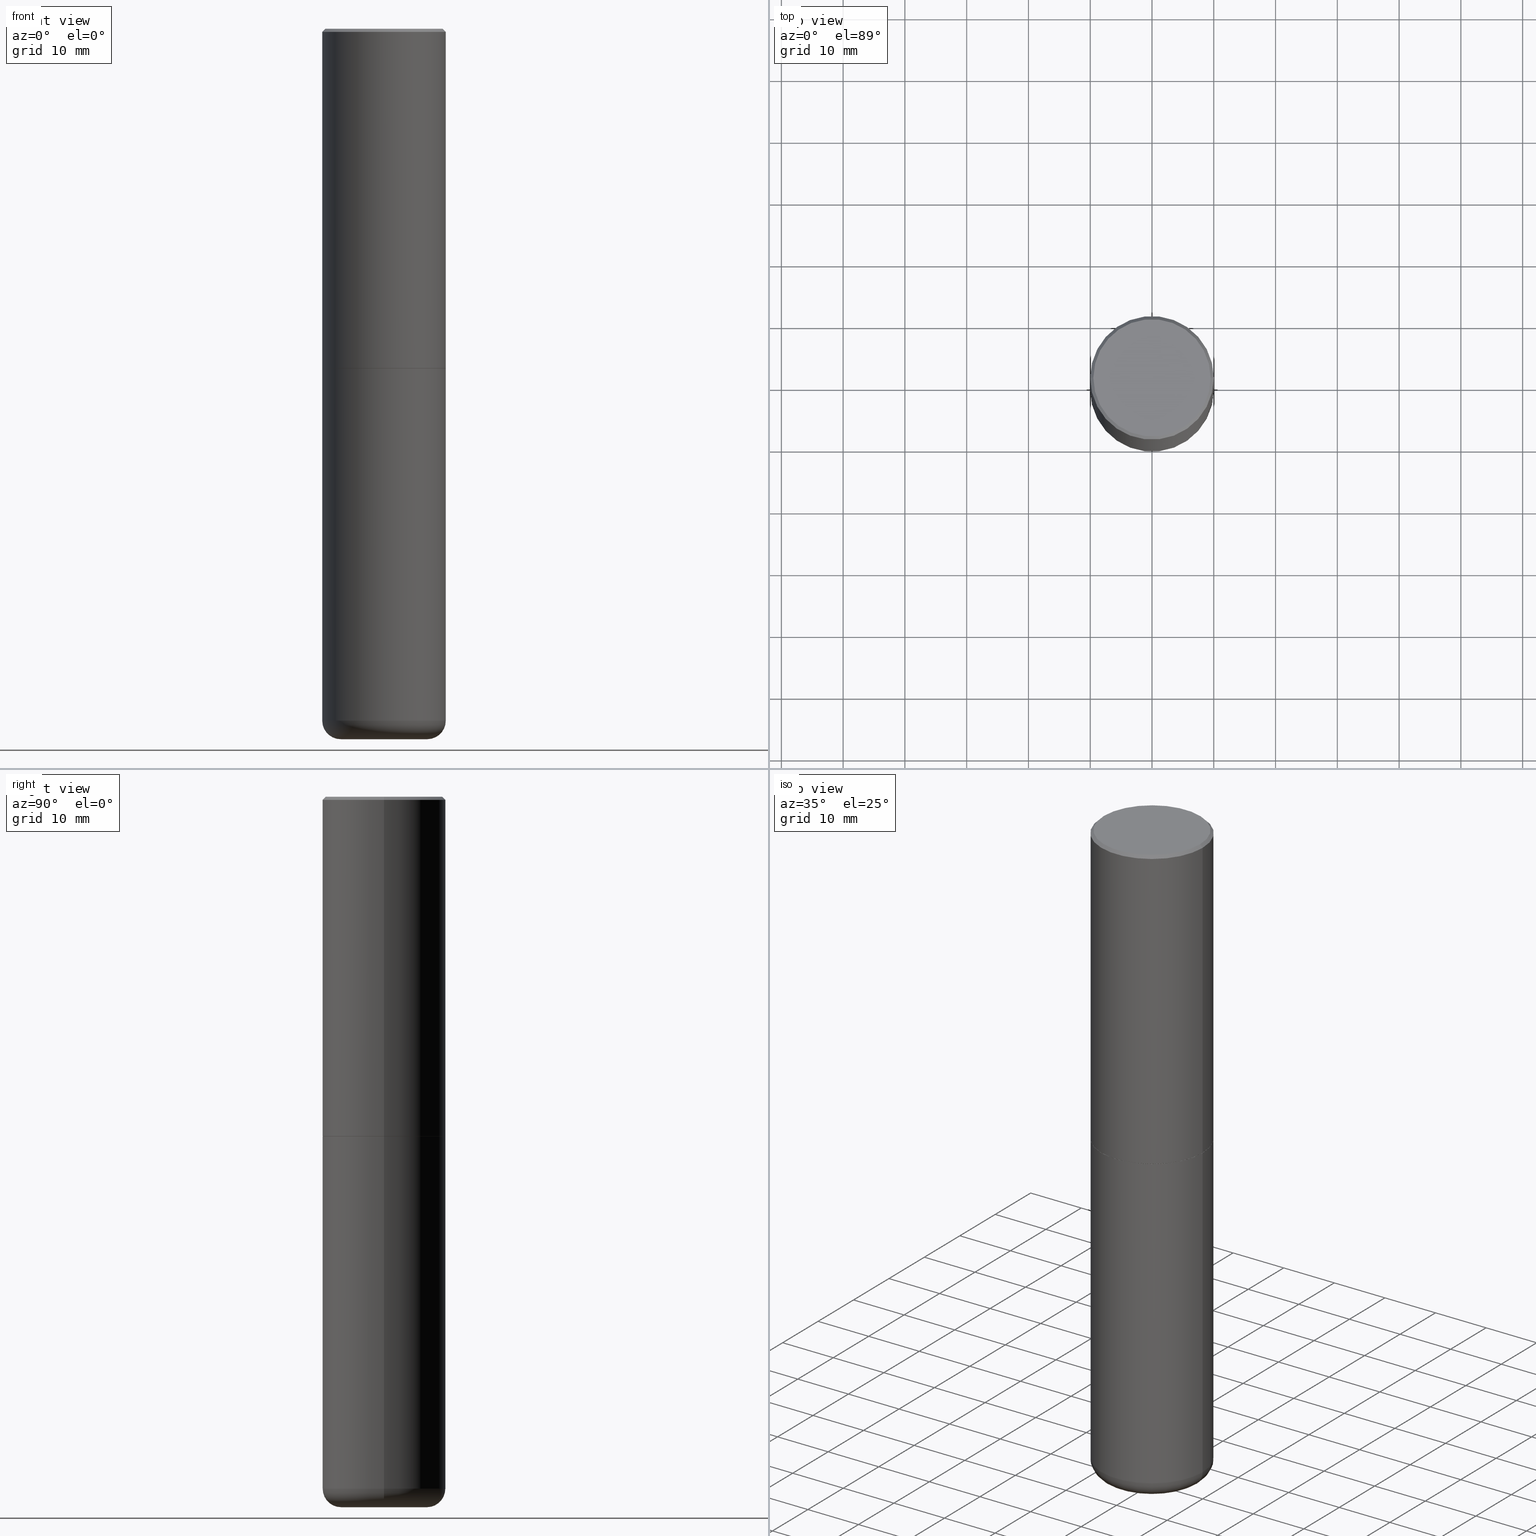
[diagram: canonical four-view strip — front | top / right | iso, engineering-drawing reading convention]
A machine part, canonical four-view strip (front | top / right | iso — engineering-drawing reading convention). The complete STEP part file that produces these views, byte-faithful:
ISO-10303-21;
HEADER;
FILE_DESCRIPTION (( 'STEP AP203' ),
    '1' );
FILE_NAME ('74834.STEP',
    '2024-05-02T19:22:22',
    ( '' ),
    ( '' ),
    'SwSTEP 2.0',
    'SolidWorks 2023',
    '' );
FILE_SCHEMA (( 'CONFIG_CONTROL_DESIGN' ));
ENDSEC;

DATA;
#1 = DIRECTION ( 'NONE',  ( -2.445468806185136597E-29, 3.491481338843145583E-15, 1.000000000000000000 ) ) ;
#2 = ADVANCED_FACE ( 'NONE', ( #394 ), #97, .F. ) ;
#3 = ORIENTED_EDGE ( 'NONE', *, *, #361, .T. ) ;
#4 = MECHANICAL_CONTEXT ( 'NONE', #238, 'mechanical' ) ;
#5 = VERTEX_POINT ( 'NONE', #38 ) ;
#6 = EDGE_CURVE ( 'NONE', #299, #298, #411, .T. ) ;
#7 = DIRECTION ( 'NONE',  ( 1.000000000000000000, -6.982962677686269077E-15, 0.000000000000000000 ) ) ;
#8 = ORIENTED_EDGE ( 'NONE', *, *, #361, .F. ) ;
#9 = CARTESIAN_POINT ( 'NONE',  ( -0.2756000000000000116, -1.343743118387401317E-14, -4.409499999999999531 ) ) ;
#10 = EDGE_CURVE ( 'NONE', #87, #91, #324, .T. ) ;
#11 = EDGE_LOOP ( 'NONE', ( #85, #194, #8, #231 ) ) ;
#12 = CLOSED_SHELL ( 'NONE', ( #237, #196, #373, #229, #337, #76, #302, #2 ) ) ;
#13 = CARTESIAN_POINT ( 'NONE',  ( 0.3736999999999999211, -2.667287895133367964E-15, 2.262311619753402158E-16 ) ) ;
#14 =( NAMED_UNIT ( * ) PLANE_ANGLE_UNIT ( ) SI_UNIT ( $, .RADIAN. ) );
#15 = CARTESIAN_POINT ( 'NONE',  ( 5.295418152913293224E-29, -7.560453691130945845E-15, -2.165399999999999547 ) ) ;
#16 = CALENDAR_DATE ( 2024, 2, 5 ) ;
#17 = CC_DESIGN_PERSON_AND_ORGANIZATION_ASSIGNMENT ( #182, #214, ( #225 ) ) ;
#18 = DIRECTION ( 'NONE',  ( -2.445468806185136877E-29, 3.491481338843145188E-15, 1.000000000000000000 ) ) ;
#19 = DIRECTION ( 'NONE',  ( -2.445468806185136597E-29, 3.491481338843145583E-15, 1.000000000000000000 ) ) ;
#20 = CONICAL_SURFACE ( 'NONE', #239, 0.3937000000000001054, 0.7853981633974453924 ) ;
#21 = FACE_OUTER_BOUND ( 'NONE', #300, .T. ) ;
#22 = DIRECTION ( 'NONE',  ( -2.445468806185136597E-29, 3.491481338843145583E-15, 1.000000000000000000 ) ) ;
#23 = CARTESIAN_POINT ( 'NONE',  ( 1.107210456688382074E-28, -1.580803090974622074E-14, -4.527599999999998737 ) ) ;
#24 = CONICAL_SURFACE ( 'NONE', #42, 0.3937000000000001054, 0.7853981633974453924 ) ;
#25 = APPROVAL_PERSON_ORGANIZATION ( #339, #142, #89 ) ;
#26 = CARTESIAN_POINT ( 'NONE',  ( 4.890937612370294178E-31, -6.982962677686321191E-17, -0.02000000000000008715 ) ) ;
#27 = ORIENTED_EDGE ( 'NONE', *, *, #179, .F. ) ;
#28 = ORIENTED_EDGE ( 'NONE', *, *, #385, .F. ) ;
#29 = DIRECTION ( 'NONE',  ( 1.000000000000000000, -6.982962677686265922E-15, 0.000000000000000000 ) ) ;
#30 = CALENDAR_DATE ( 2024, 2, 5 ) ;
#31 = CIRCLE ( 'NONE', #278, 0.3937000000000001054 ) ;
#32 = ORIENTED_EDGE ( 'NONE', *, *, #269, .F. ) ;
#33 = PERSON_AND_ORGANIZATION ( #166, #165 ) ;
#34 = EDGE_LOOP ( 'NONE', ( #384, #201, #129, #267 ) ) ;
#35 = TOROIDAL_SURFACE ( 'NONE', #371, 0.2756000000000000116, 0.1180999999999997052 ) ;
#36 = ORIENTED_EDGE ( 'NONE', *, *, #376, .F. ) ;
#37 = DIRECTION ( 'NONE',  ( -0.7071067811865454633, 2.468850131082235367E-15, -0.7071067811865495711 ) ) ;
#38 = CARTESIAN_POINT ( 'NONE',  ( 0.3937000000000002720, -1.030615461599718763E-14, -2.164399999999999658 ) ) ;
#39 = DIRECTION ( 'NONE',  ( 1.000000000000000000, -6.982962677686266711E-15, 0.000000000000000000 ) ) ;
#40 = ADVANCED_FACE ( 'NONE', ( #104 ), #338, .F. ) ;
#41 = VECTOR ( 'NONE', #164, 39.37007874015748143 ) ;
#42 = AXIS2_PLACEMENT_3D ( 'NONE', #26, #151, #289 ) ;
#43 = DIRECTION ( 'NONE',  ( -2.445468806185136597E-29, 3.491481338843145583E-15, 1.000000000000000000 ) ) ;
#44 = DIRECTION ( 'NONE',  ( 1.000000000000000000, -6.982962677686265133E-15, 0.000000000000000000 ) ) ;
#45 = DIRECTION ( 'NONE',  ( -2.445468806185136597E-29, 3.491481338843145583E-15, 1.000000000000000000 ) ) ;
#46 = EDGE_CURVE ( 'NONE', #5, #91, #74, .T. ) ;
#47 = DIRECTION ( 'NONE',  ( -2.445468806185136597E-29, 3.491481338843145583E-15, 1.000000000000000000 ) ) ;
#48 = CIRCLE ( 'NONE', #412, 0.3736999999999999211 ) ;
#49 = DIRECTION ( 'NONE',  ( 1.000000000000000000, -6.982962677686265922E-15, 4.876176775795935793E-29 ) ) ;
#50 = CARTESIAN_POINT ( 'NONE',  ( 0.3926999999999999935, -1.030266313465834305E-14, -2.165399999999999547 ) ) ;
#51 = CARTESIAN_POINT ( 'NONE',  ( 2.609533152651356620E-15, 0.3736999999999999211, -1.191650995338022328E-15 ) ) ;
#52 = PLANE ( 'NONE',  #86 ) ;
#53 = VECTOR ( 'NONE', #37, 39.37007874015748143 ) ;
#54 = DIRECTION ( 'NONE',  ( 1.000000000000000000, -6.982962677686266711E-15, 4.876176775795935793E-29 ) ) ;
#55 = VERTEX_POINT ( 'NONE', #215 ) ;
#56 = DATE_AND_TIME ( #397, #295 ) ;
#57 = ORIENTED_EDGE ( 'NONE', *, *, #63, .F. ) ;
#58 = ORIENTED_EDGE ( 'NONE', *, *, #304, .T. ) ;
#59 = CIRCLE ( 'NONE', #247, 0.3936999999999999389 ) ;
#60 = EDGE_LOOP ( 'NONE', ( #258, #236, #326, #119 ) ) ;
#61 = EDGE_LOOP ( 'NONE', ( #28, #132 ) ) ;
#62 = ORIENTED_EDGE ( 'NONE', *, *, #46, .F. ) ;
#63 = EDGE_CURVE ( 'NONE', #298, #152, #59, .T. ) ;
#64 = ORIENTED_EDGE ( 'NONE', *, *, #315, .T. ) ;
#65 = TOROIDAL_SURFACE ( 'NONE', #309, 0.2756000000000000116, 0.1180999999999997052 ) ;
#66 = DIRECTION ( 'NONE',  ( 0.7071067811866199593, -2.468850131083015945E-15, 0.7071067811864750752 ) ) ;
#67 = CARTESIAN_POINT ( 'NONE',  ( 5.295418152913293224E-29, -7.560453691130945845E-15, -2.165399999999999547 ) ) ;
#68 = EDGE_CURVE ( 'NONE', #191, #91, #113, .T. ) ;
#69 = DIRECTION ( 'NONE',  ( 1.000000000000000000, -6.982962677686266711E-15, 4.876176775795935793E-29 ) ) ;
#70 = PERSON_AND_ORGANIZATION ( #166, #165 ) ;
#71 = DIRECTION ( 'NONE',  ( 1.000000000000000000, -6.982962677686268288E-15, 0.000000000000000000 ) ) ;
#72 = COORDINATED_UNIVERSAL_TIME_OFFSET ( 5, 0, .BEHIND. ) ;
#73 = CIRCLE ( 'NONE', #172, 0.2756000000000000116 ) ;
#74 = LINE ( 'NONE', #136, #148 ) ;
#75 = CARTESIAN_POINT ( 'NONE',  ( 0.3937000000000001054, -2.770807688499516128E-15, -0.02000000000000008715 ) ) ;
#76 = ADVANCED_FACE ( 'NONE', ( #143 ), #99, .T. ) ;
#77 = CARTESIAN_POINT ( 'NONE',  ( 1.107210456688382074E-28, -1.580803090974622074E-14, -4.527599999999998737 ) ) ;
#78 = CC_DESIGN_PERSON_AND_ORGANIZATION_ASSIGNMENT ( #365, #274, ( #418 ) ) ;
#79 = FACE_OUTER_BOUND ( 'NONE', #61, .T. ) ;
#80 = AXIS2_PLACEMENT_3D ( 'NONE', #242, #101, #71 ) ;
#81 = CARTESIAN_POINT ( 'NONE',  ( 5.295418152913293224E-29, -7.560453691130945845E-15, -2.165399999999999547 ) ) ;
#82 = CARTESIAN_POINT ( 'NONE',  ( 4.890937612370294178E-31, -6.982962677686321191E-17, -0.02000000000000008715 ) ) ;
#83 = ORIENTED_EDGE ( 'NONE', *, *, #356, .T. ) ;
#84 = CARTESIAN_POINT ( 'NONE',  ( 5.292972684107107621E-29, -7.556962209792102838E-15, -2.164399999999999658 ) ) ;
#85 = ORIENTED_EDGE ( 'NONE', *, *, #63, .T. ) ;
#86 = AXIS2_PLACEMENT_3D ( 'NONE', #417, #219, #49 ) ;
#87 = VERTEX_POINT ( 'NONE', #13 ) ;
#88 = ORIENTED_EDGE ( 'NONE', *, *, #131, .F. ) ;
#89 = APPROVAL_ROLE ( '' ) ;
#90 = PERSON_AND_ORGANIZATION ( #166, #165 ) ;
#91 = VERTEX_POINT ( 'NONE', #75 ) ;
#92 = CIRCLE ( 'NONE', #341, 0.1180999999999997191 ) ;
#93 = EDGE_LOOP ( 'NONE', ( #127, #268 ) ) ;
#94 = CC_DESIGN_APPROVAL ( #401, ( #225 ) ) ;
#95 = EDGE_CURVE ( 'NONE', #388, #191, #135, .T. ) ;
#96 = DIRECTION ( 'NONE',  ( -6.982962677686266711E-15, -1.000000000000000000, 3.491481338843145583E-15 ) ) ;
#97 = PLANE ( 'NONE',  #171 ) ;
#98 = EDGE_CURVE ( 'NONE', #362, #328, #168, .T. ) ;
#99 = CONICAL_SURFACE ( 'NONE', #80, 0.3926999999999999935, 0.7853981633975507526 ) ;
#100 = SECURITY_CLASSIFICATION ( '', '', #279 ) ;
#101 = DIRECTION ( 'NONE',  ( -2.445468806185136597E-29, 3.491481338843145583E-15, 1.000000000000000000 ) ) ;
#102 = CARTESIAN_POINT ( 'NONE',  ( 0.000000000000000000, 0.000000000000000000, 0.000000000000000000 ) ) ;
#103 = CC_DESIGN_PERSON_AND_ORGANIZATION_ASSIGNMENT ( #33, #160, ( #347 ) ) ;
#104 = FACE_OUTER_BOUND ( 'NONE', #163, .T. ) ;
#105 = CARTESIAN_POINT ( 'NONE',  ( 0.3926999999999999935, -1.030266313465834305E-14, -2.165399999999999547 ) ) ;
#106 = CIRCLE ( 'NONE', #259, 0.3937000000000002720 ) ;
#107 = FACE_OUTER_BOUND ( 'NONE', #161, .T. ) ;
#108 = CARTESIAN_POINT ( 'NONE',  ( -5.532412495976664402E-45, 7.898818803016371119E-31, 2.262311619753217762E-16 ) ) ;
#109 = EDGE_CURVE ( 'NONE', #55, #152, #92, .T. ) ;
#110 = DIRECTION ( 'NONE',  ( 2.445468806185136597E-29, -3.491481338843145583E-15, -1.000000000000000000 ) ) ;
#111 = EDGE_CURVE ( 'NONE', #328, #191, #280, .T. ) ;
#112 = CLOSED_SHELL ( 'NONE', ( #138, #153, #40, #266, #389, #240 ) ) ;
#113 = CIRCLE ( 'NONE', #308, 0.3937000000000001054 ) ;
#114 = CARTESIAN_POINT ( 'NONE',  ( 5.295418152913293224E-29, -7.560453691130945845E-15, -2.165399999999999547 ) ) ;
#115 = CC_DESIGN_APPROVAL ( #261, ( #100 ) ) ;
#116 = DIRECTION ( 'NONE',  ( -1.000000000000000000, 6.982962677686265922E-15, -4.876176775795935793E-29 ) ) ;
#117 = DIRECTION ( 'NONE',  ( -2.445468806185136597E-29, 3.491481338843145583E-15, 1.000000000000000000 ) ) ;
#118 = ORIENTED_EDGE ( 'NONE', *, *, #109, .F. ) ;
#119 = ORIENTED_EDGE ( 'NONE', *, *, #68, .T. ) ;
#120 = MANIFOLD_SOLID_BREP ( 'Body-Move/Copy2[2]', #12 ) ;
#121 = DIRECTION ( 'NONE',  ( -2.445468806185136597E-29, 3.491481338843145583E-15, 1.000000000000000000 ) ) ;
#122 = ORIENTED_EDGE ( 'NONE', *, *, #111, .T. ) ;
#123 = CONICAL_SURFACE ( 'NONE', #223, 0.3926999999999999935, 0.7853981633975507526 ) ;
#124 = LENGTH_MEASURE_WITH_UNIT ( LENGTH_MEASURE( 0.02539999999999999897 ), #169 );
#125 = CALENDAR_DATE ( 2024, 2, 5 ) ;
#126 = DIRECTION ( 'NONE',  ( -2.445468806185136597E-29, 3.491481338843145583E-15, 1.000000000000000000 ) ) ;
#127 = ORIENTED_EDGE ( 'NONE', *, *, #318, .T. ) ;
#128 = AXIS2_PLACEMENT_3D ( 'NONE', #67, #126, #310 ) ;
#129 = ORIENTED_EDGE ( 'NONE', *, *, #46, .T. ) ;
#130 = LINE ( 'NONE', #275, #141 ) ;
#131 = EDGE_CURVE ( 'NONE', #152, #272, #130, .T. ) ;
#132 = ORIENTED_EDGE ( 'NONE', *, *, #156, .F. ) ;
#133 = COORDINATED_UNIVERSAL_TIME_OFFSET ( 5, 0, .BEHIND. ) ;
#134 = CIRCLE ( 'NONE', #404, 0.3937000000000000499 ) ;
#135 = LINE ( 'NONE', #303, #53 ) ;
#136 = CARTESIAN_POINT ( 'NONE',  ( 0.3937000000000002164, -2.749192406205084794E-15, 1.919750796630861012E-29 ) ) ;
#137 = EDGE_LOOP ( 'NONE', ( #27, #291, #305, #193 ) ) ;
#138 = ADVANCED_FACE ( 'NONE', ( #398 ), #343, .T. ) ;
#139 = CARTESIAN_POINT ( 'NONE',  ( 0.000000000000000000, 0.000000000000000000, 0.000000000000000000 ) ) ;
#140 = APPROVAL_STATUS ( 'not_yet_approved' ) ;
#141 = VECTOR ( 'NONE', #18, 39.37007874015748143 ) ;
#142 = APPROVAL ( #297, 'UNSPECIFIED' ) ;
#143 = FACE_OUTER_BOUND ( 'NONE', #222, .T. ) ;
#144 = DIRECTION ( 'NONE',  ( -2.445468806185136597E-29, 3.491481338843145583E-15, 1.000000000000000000 ) ) ;
#145 = EDGE_CURVE ( 'NONE', #333, #5, #244, .T. ) ;
#146 = EDGE_LOOP ( 'NONE', ( #118, #64, #391, #352 ) ) ;
#147 = DIRECTION ( 'NONE',  ( -2.445468806185136597E-29, 3.491481338843145583E-15, 1.000000000000000000 ) ) ;
#148 = VECTOR ( 'NONE', #307, 39.37007874015748143 ) ;
#149 = LINE ( 'NONE', #286, #322 ) ;
#150 = CARTESIAN_POINT ( 'NONE',  ( 0.3937000000000001054, -2.770807688499516128E-15, -0.02000000000000008715 ) ) ;
#151 = DIRECTION ( 'NONE',  ( 2.445468806185136597E-29, -3.491481338843145583E-15, -1.000000000000000000 ) ) ;
#152 = VERTEX_POINT ( 'NONE', #205 ) ;
#153 = ADVANCED_FACE ( 'NONE', ( #209 ), #65, .T. ) ;
#154 = DIRECTION ( 'NONE',  ( -1.000000000000000000, 6.982962677686266711E-15, 0.000000000000000000 ) ) ;
#155 = APPROVAL_DATE_TIME ( #327, #401 ) ;
#156 = EDGE_CURVE ( 'NONE', #362, #333, #392, .T. ) ;
#157 = APPROVAL_PERSON_ORGANIZATION ( #216, #261, #253 ) ;
#158 = APPLICATION_PROTOCOL_DEFINITION ( 'international standard', 'config_control_design', 1994, #380 ) ;
#159 = ORIENTED_EDGE ( 'NONE', *, *, #273, .F. ) ;
#160 = PERSON_AND_ORGANIZATION_ROLE ( 'design_owner' ) ;
#161 = EDGE_LOOP ( 'NONE', ( #185, #122, #228, #62 ) ) ;
#162 = CIRCLE ( 'NONE', #128, 0.3926999999999999935 ) ;
#163 = EDGE_LOOP ( 'NONE', ( #3, #58 ) ) ;
#164 = DIRECTION ( 'NONE',  ( 0.7071067811865454633, -7.319954787623248157E-15, -0.7071067811865495711 ) ) ;
#165 = ORGANIZATION ( 'UNSPECIFIED', 'UNSPECIFIED', '' ) ;
#166 = PERSON ( 'UNSPECIFIED', 'UNSPECIFIED', 'UNSPECIFIED', ('UNSPECIFIED'), ('UNSPECIFIED'), ('UNSPECIFIED') ) ;
#167 = ORIENTED_EDGE ( 'NONE', *, *, #304, .F. ) ;
#168 = LINE ( 'NONE', #170, #317 ) ;
#169 =( LENGTH_UNIT ( ) NAMED_UNIT ( * ) SI_UNIT ( $, .METRE. ) );
#170 = CARTESIAN_POINT ( 'NONE',  ( -0.3926999999999999935, -4.770152367801032067E-15, -2.165399999999999547 ) ) ;
#171 = AXIS2_PLACEMENT_3D ( 'NONE', #51, #197, #212 ) ;
#172 = AXIS2_PLACEMENT_3D ( 'NONE', #23, #355, #29 ) ;
#173 = DATE_TIME_ROLE ( 'creation_date' ) ;
#174 = CARTESIAN_POINT ( 'NONE',  ( 1.078329470087335798E-28, -1.539568696362884818E-14, -4.409499999999999531 ) ) ;
#175 = DATE_TIME_ROLE ( 'classification_date' ) ;
#176 = DIRECTION ( 'NONE',  ( -0.7071067811866199593, 7.493145998870616062E-15, 0.7071067811864750752 ) ) ;
#177 = CARTESIAN_POINT ( 'NONE',  ( -0.3937000000000001054, 2.679362779428220707E-15, -0.02000000000000008715 ) ) ;
#178 = AXIS2_PLACEMENT_3D ( 'NONE', #77, #217, #255 ) ;
#179 = EDGE_CURVE ( 'NONE', #87, #388, #218, .T. ) ;
#180 = CC_DESIGN_SECURITY_CLASSIFICATION ( #100, ( #225 ) ) ;
#181 = DIRECTION ( 'NONE',  ( 1.000000000000000000, -6.982962677686269077E-15, 0.000000000000000000 ) ) ;
#182 = PERSON_AND_ORGANIZATION ( #166, #165 ) ;
#183 = DIRECTION ( 'NONE',  ( 1.000000000000000000, -6.982962677686273021E-15, 0.000000000000000000 ) ) ;
#184 = CARTESIAN_POINT ( 'NONE',  ( -5.532412495976664402E-45, 7.898818803016371119E-31, 2.262311619753217762E-16 ) ) ;
#185 = ORIENTED_EDGE ( 'NONE', *, *, #376, .T. ) ;
#186 = DIRECTION ( 'NONE',  ( 1.000000000000000000, -6.982962677686265133E-15, 0.000000000000000000 ) ) ;
#187 = AXIS2_PLACEMENT_3D ( 'NONE', #114, #147, #186 ) ;
#188 = CARTESIAN_POINT ( 'NONE',  ( -0.3937000000000002720, -1.015989167596965718E-15, -2.164399999999999658 ) ) ;
#189 = EDGE_CURVE ( 'NONE', #152, #298, #271, .T. ) ;
#190 = CARTESIAN_POINT ( 'NONE',  ( 5.295418152913293224E-29, -7.560453691130945845E-15, -2.165399999999999547 ) ) ;
#191 = VERTEX_POINT ( 'NONE', #177 ) ;
#192 = DIRECTION ( 'NONE',  ( 0.000000000000000000, 0.000000000000000000, 1.000000000000000000 ) ) ;
#193 = ORIENTED_EDGE ( 'NONE', *, *, #95, .F. ) ;
#194 = ORIENTED_EDGE ( 'NONE', *, *, #131, .T. ) ;
#195 = APPROVAL_DATE_TIME ( #230, #142 ) ;
#196 = ADVANCED_FACE ( 'NONE', ( #107 ), #250, .T. ) ;
#197 = DIRECTION ( 'NONE',  ( 2.438088387897960049E-29, -3.491481338843145188E-15, -1.000000000000000000 ) ) ;
#198 = ORIENTED_EDGE ( 'NONE', *, *, #145, .T. ) ;
#199 = CARTESIAN_POINT ( 'NONE',  ( 5.292972684107107621E-29, -7.556962209792102838E-15, -2.164399999999999658 ) ) ;
#200 = ORIENTED_EDGE ( 'NONE', *, *, #385, .T. ) ;
#201 = ORIENTED_EDGE ( 'NONE', *, *, #269, .T. ) ;
#202 = DESIGN_CONTEXT ( 'detailed design', #380, 'design' ) ;
#203 = ORIENTED_EDGE ( 'NONE', *, *, #98, .F. ) ;
#204 = AXIS2_PLACEMENT_3D ( 'NONE', #108, #312, #396 ) ;
#205 = CARTESIAN_POINT ( 'NONE',  ( -0.3936999999999998279, -1.259828021294133576E-14, -4.409499999999999531 ) ) ;
#206 = CARTESIAN_POINT ( 'NONE',  ( -0.3736999999999999211, 2.644447966039789453E-15, 2.262311619753034352E-16 ) ) ;
#207 = DIRECTION ( 'NONE',  ( 1.000000000000000000, -6.982962677686268288E-15, 0.000000000000000000 ) ) ;
#208 = ORIENTED_EDGE ( 'NONE', *, *, #145, .F. ) ;
#209 = FACE_OUTER_BOUND ( 'NONE', #382, .T. ) ;
#210 = CIRCLE ( 'NONE', #294, 0.3937000000000002720 ) ;
#211 = DATE_AND_TIME ( #375, #342 ) ;
#212 = DIRECTION ( 'NONE',  ( -1.000000000000000000, 6.982962677686265922E-15, -4.876176775795935793E-29 ) ) ;
#213 = DIRECTION ( 'NONE',  ( -1.000000000000000000, 6.982962677686265922E-15, -4.876176775795935793E-29 ) ) ;
#214 = PERSON_AND_ORGANIZATION_ROLE ( 'design_supplier' ) ;
#215 = CARTESIAN_POINT ( 'NONE',  ( -0.2756000000000000116, -1.322402767146636311E-14, -4.527599999999998737 ) ) ;
#216 = PERSON_AND_ORGANIZATION ( #166, #165 ) ;
#217 = DIRECTION ( 'NONE',  ( -2.445468806185136597E-29, 3.491481338843145583E-15, 1.000000000000000000 ) ) ;
#218 = CIRCLE ( 'NONE', #204, 0.3736999999999999211 ) ;
#219 = DIRECTION ( 'NONE',  ( -2.438088387897960049E-29, 3.491481338843145188E-15, 1.000000000000000000 ) ) ;
#220 = DIRECTION ( 'NONE',  ( 2.438088387897960049E-29, -3.491481338843145188E-15, -1.000000000000000000 ) ) ;
#221 = FACE_OUTER_BOUND ( 'NONE', #137, .T. ) ;
#222 = EDGE_LOOP ( 'NONE', ( #203, #387, #198, #32 ) ) ;
#223 = AXIS2_PLACEMENT_3D ( 'NONE', #190, #117, #281 ) ;
#224 = FACE_OUTER_BOUND ( 'NONE', #60, .T. ) ;
#225 = PRODUCT_DEFINITION_FORMATION_WITH_SPECIFIED_SOURCE ( 'ANY', '', #347, .NOT_KNOWN. ) ;
#226 = CC_DESIGN_DATE_AND_TIME_ASSIGNMENT ( #56, #173, ( #418 ) ) ;
#227 = COORDINATED_UNIVERSAL_TIME_OFFSET ( 5, 0, .BEHIND. ) ;
#228 = ORIENTED_EDGE ( 'NONE', *, *, #232, .F. ) ;
#229 = ADVANCED_FACE ( 'NONE', ( #224 ), #20, .T. ) ;
#230 = DATE_AND_TIME ( #125, #405 ) ;
#231 = ORIENTED_EDGE ( 'NONE', *, *, #356, .F. ) ;
#232 = EDGE_CURVE ( 'NONE', #91, #191, #31, .T. ) ;
#233 =( NAMED_UNIT ( * ) SI_UNIT ( $, .STERADIAN. ) SOLID_ANGLE_UNIT ( ) );
#234 = AXIS2_PLACEMENT_3D ( 'NONE', #283, #96, #183 ) ;
#235 = AXIS2_PLACEMENT_3D ( 'NONE', #323, #22, #410 ) ;
#236 = ORIENTED_EDGE ( 'NONE', *, *, #318, .F. ) ;
#237 = ADVANCED_FACE ( 'NONE', ( #252 ), #123, .T. ) ;
#238 = APPLICATION_CONTEXT ( 'configuration controlled 3d designs of mechanical parts and assemblies' ) ;
#239 = AXIS2_PLACEMENT_3D ( 'NONE', #82, #110, #154 ) ;
#240 = ADVANCED_FACE ( 'NONE', ( #257 ), #383, .T. ) ;
#241 = CARTESIAN_POINT ( 'NONE',  ( 1.078329470087335798E-28, -1.539568696362884818E-14, -4.409499999999999531 ) ) ;
#242 = CARTESIAN_POINT ( 'NONE',  ( 5.295418152913293224E-29, -7.560453691130945845E-15, -2.165399999999999547 ) ) ;
#243 = DIRECTION ( 'NONE',  ( 1.000000000000000000, 0.000000000000000000, 0.000000000000000000 ) ) ;
#244 = LINE ( 'NONE', #105, #386 ) ;
#245 = CC_DESIGN_PERSON_AND_ORGANIZATION_ASSIGNMENT ( #90, #360, ( #225 ) ) ;
#246 = DIRECTION ( 'NONE',  ( -2.445468806185136877E-29, 3.491481338843145188E-15, 1.000000000000000000 ) ) ;
#247 = AXIS2_PLACEMENT_3D ( 'NONE', #368, #19, #44 ) ;
#248 = PERSON_AND_ORGANIZATION_ROLE ( 'classification_officer' ) ;
#249 = LOCAL_TIME ( 15, 22, 22.00000000000000000, #407 ) ;
#250 = CYLINDRICAL_SURFACE ( 'NONE', #301, 0.3937000000000002164 ) ;
#251 = DIRECTION ( 'NONE',  ( 2.438088387897960049E-29, -3.491481338843145188E-15, -1.000000000000000000 ) ) ;
#252 = FACE_OUTER_BOUND ( 'NONE', #293, .T. ) ;
#253 = APPROVAL_ROLE ( '' ) ;
#254 = AXIS2_PLACEMENT_3D ( 'NONE', #270, #43, #207 ) ;
#255 = DIRECTION ( 'NONE',  ( 1.000000000000000000, -6.982962677686265922E-15, 0.000000000000000000 ) ) ;
#256 = CARTESIAN_POINT ( 'NONE',  ( -0.3926999999999999935, -4.764853913452808876E-15, -2.165399999999999547 ) ) ;
#257 = FACE_OUTER_BOUND ( 'NONE', #331, .T. ) ;
#258 = ORIENTED_EDGE ( 'NONE', *, *, #10, .F. ) ;
#259 = AXIS2_PLACEMENT_3D ( 'NONE', #84, #144, #181 ) ;
#260 = ORIENTED_EDGE ( 'NONE', *, *, #98, .T. ) ;
#261 = APPROVAL ( #140, 'UNSPECIFIED' ) ;
#262 = ORIENTED_EDGE ( 'NONE', *, *, #273, .T. ) ;
#263 = DIRECTION ( 'NONE',  ( -2.445468806185136597E-29, 3.491481338843145583E-15, 1.000000000000000000 ) ) ;
#264 = AXIS2_PLACEMENT_3D ( 'NONE', #408, #379, #348 ) ;
#265 = APPROVAL_PERSON_ORGANIZATION ( #70, #401, #359 ) ;
#266 = ADVANCED_FACE ( 'NONE', ( #21 ), #351, .T. ) ;
#267 = ORIENTED_EDGE ( 'NONE', *, *, #68, .F. ) ;
#268 = ORIENTED_EDGE ( 'NONE', *, *, #179, .T. ) ;
#269 = EDGE_CURVE ( 'NONE', #328, #5, #106, .T. ) ;
#270 = CARTESIAN_POINT ( 'NONE',  ( 5.295418152913293224E-29, -7.560453691130945845E-15, -2.165399999999999547 ) ) ;
#271 = CIRCLE ( 'NONE', #284, 0.3936999999999999389 ) ;
#272 = VERTEX_POINT ( 'NONE', #282 ) ;
#273 = EDGE_CURVE ( 'NONE', #299, #55, #73, .T. ) ;
#274 = PERSON_AND_ORGANIZATION_ROLE ( 'creator' ) ;
#275 = CARTESIAN_POINT ( 'NONE',  ( -0.3936999999999999389, 2.797406750687513998E-15, -1.936584745033356455E-29 ) ) ;
#276 = DIRECTION ( 'NONE',  ( -2.445468806185136597E-29, 3.491481338843145583E-15, 1.000000000000000000 ) ) ;
#277 = DIRECTION ( 'NONE',  ( 1.000000000000000000, -6.982962677686265133E-15, 0.000000000000000000 ) ) ;
#278 = AXIS2_PLACEMENT_3D ( 'NONE', #319, #47, #416 ) ;
#279 = SECURITY_CLASSIFICATION_LEVEL ( 'unclassified' ) ;
#280 = LINE ( 'NONE', #316, #353 ) ;
#281 = DIRECTION ( 'NONE',  ( 1.000000000000000000, -6.982962677686268288E-15, 0.000000000000000000 ) ) ;
#282 = CARTESIAN_POINT ( 'NONE',  ( -0.3937000000000000499, -8.680663576692383017E-15, -2.165399999999999547 ) ) ;
#283 = CARTESIAN_POINT ( 'NONE',  ( 0.2756000000000000116, -1.732019147759918314E-14, -4.409499999999999531 ) ) ;
#284 = AXIS2_PLACEMENT_3D ( 'NONE', #402, #370, #277 ) ;
#285 = AXIS2_PLACEMENT_3D ( 'NONE', #102, #192, #243 ) ;
#286 = CARTESIAN_POINT ( 'NONE',  ( 0.3936999999999999389, -2.749192406205082822E-15, 1.919750796630859611E-29 ) ) ;
#287 = ADVANCED_BREP_SHAPE_REPRESENTATION ( '74834', ( #400, #120, #285 ), #413 ) ;
#288 = CC_DESIGN_PERSON_AND_ORGANIZATION_ASSIGNMENT ( #369, #248, ( #100 ) ) ;
#289 = DIRECTION ( 'NONE',  ( -1.000000000000000000, 6.982962677686266711E-15, 0.000000000000000000 ) ) ;
#290 = ORIENTED_EDGE ( 'NONE', *, *, #6, .F. ) ;
#291 = ORIENTED_EDGE ( 'NONE', *, *, #10, .T. ) ;
#292 = CARTESIAN_POINT ( 'NONE',  ( 1.733990391732979190E-28, -6.832185498923057657E-15, -4.527599999999998737 ) ) ;
#293 = EDGE_LOOP ( 'NONE', ( #200, #260, #36, #208 ) ) ;
#294 = AXIS2_PLACEMENT_3D ( 'NONE', #199, #1, #7 ) ;
#295 = LOCAL_TIME ( 15, 22, 22.00000000000000000, #336 ) ;
#296 = APPLICATION_PROTOCOL_DEFINITION ( 'international standard', 'config_control_design', 1994, #238 ) ;
#297 = APPROVAL_STATUS ( 'not_yet_approved' ) ;
#298 = VERTEX_POINT ( 'NONE', #377 ) ;
#299 = VERTEX_POINT ( 'NONE', #325 ) ;
#300 = EDGE_LOOP ( 'NONE', ( #88, #393, #83, #167 ) ) ;
#301 = AXIS2_PLACEMENT_3D ( 'NONE', #372, #335, #54 ) ;
#302 = ADVANCED_FACE ( 'NONE', ( #79 ), #52, .F. ) ;
#303 = CARTESIAN_POINT ( 'NONE',  ( -0.3937000000000001054, 2.679362779428220707E-15, -0.02000000000000008715 ) ) ;
#304 = EDGE_CURVE ( 'NONE', #272, #363, #134, .T. ) ;
#305 = ORIENTED_EDGE ( 'NONE', *, *, #232, .T. ) ;
#306 =( CONVERSION_BASED_UNIT ( 'INCH', #124 ) LENGTH_UNIT ( ) NAMED_UNIT ( #403 ) );
#307 = DIRECTION ( 'NONE',  ( -2.445468806185136877E-29, 3.491481338843145188E-15, 1.000000000000000000 ) ) ;
#308 = AXIS2_PLACEMENT_3D ( 'NONE', #340, #276, #39 ) ;
#309 = AXIS2_PLACEMENT_3D ( 'NONE', #174, #45, #406 ) ;
#310 = DIRECTION ( 'NONE',  ( 1.000000000000000000, -6.982962677686268288E-15, 0.000000000000000000 ) ) ;
#311 = UNCERTAINTY_MEASURE_WITH_UNIT (LENGTH_MEASURE( 1.000000000000000082E-05 ), #306, 'distance_accuracy_value', 'NONE');
#312 = DIRECTION ( 'NONE',  ( -2.445468806185136597E-29, 3.491481338843145583E-15, 1.000000000000000000 ) ) ;
#313 = SHAPE_DEFINITION_REPRESENTATION ( #414, #287 ) ;
#314 = DIRECTION ( 'NONE',  ( -1.000000000000000000, 7.105427357601005014E-15, 0.000000000000000000 ) ) ;
#315 = EDGE_CURVE ( 'NONE', #55, #299, #364, .T. ) ;
#316 = CARTESIAN_POINT ( 'NONE',  ( -0.3937000000000002164, 2.797406750687515970E-15, -1.936584745033357576E-29 ) ) ;
#317 = VECTOR ( 'NONE', #176, 39.37007874015748143 ) ;
#318 = EDGE_CURVE ( 'NONE', #388, #87, #48, .T. ) ;
#319 = CARTESIAN_POINT ( 'NONE',  ( 4.890937612370294178E-31, -6.982962677686321191E-17, -0.02000000000000008715 ) ) ;
#320 = CYLINDRICAL_SURFACE ( 'NONE', #235, 0.3937000000000002164 ) ;
#321 = FACE_OUTER_BOUND ( 'NONE', #34, .T. ) ;
#322 = VECTOR ( 'NONE', #415, 39.37007874015748143 ) ;
#323 = CARTESIAN_POINT ( 'NONE',  ( 0.000000000000000000, 0.000000000000000000, 0.000000000000000000 ) ) ;
#324 = LINE ( 'NONE', #150, #41 ) ;
#325 = CARTESIAN_POINT ( 'NONE',  ( 0.2756000000000000116, -1.773253542371655569E-14, -4.527599999999998737 ) ) ;
#326 = ORIENTED_EDGE ( 'NONE', *, *, #95, .T. ) ;
#327 = DATE_AND_TIME ( #30, #330 ) ;
#328 = VERTEX_POINT ( 'NONE', #188 ) ;
#329 = ORIENTED_EDGE ( 'NONE', *, *, #109, .T. ) ;
#330 = LOCAL_TIME ( 15, 22, 22.00000000000000000, #227 ) ;
#331 = EDGE_LOOP ( 'NONE', ( #159, #332 ) ) ;
#332 = ORIENTED_EDGE ( 'NONE', *, *, #315, .F. ) ;
#333 = VERTEX_POINT ( 'NONE', #50 ) ;
#334 = AXIS2_PLACEMENT_3D ( 'NONE', #15, #251, #213 ) ;
#335 = DIRECTION ( 'NONE',  ( -2.445468806185136597E-29, 3.491481338843145583E-15, 1.000000000000000000 ) ) ;
#336 = COORDINATED_UNIVERSAL_TIME_OFFSET ( 5, 0, .BEHIND. ) ;
#337 = ADVANCED_FACE ( 'NONE', ( #321 ), #320, .T. ) ;
#338 = PLANE ( 'NONE',  #334 ) ;
#339 = PERSON_AND_ORGANIZATION ( #166, #165 ) ;
#340 = CARTESIAN_POINT ( 'NONE',  ( 4.890937612370294178E-31, -6.982962677686321191E-17, -0.02000000000000008715 ) ) ;
#341 = AXIS2_PLACEMENT_3D ( 'NONE', #9, #399, #314 ) ;
#342 = LOCAL_TIME ( 15, 22, 22.00000000000000000, #72 ) ;
#343 = CYLINDRICAL_SURFACE ( 'NONE', #378, 0.3936999999999999389 ) ;
#344 = DATE_AND_TIME ( #16, #249 ) ;
#345 = DIRECTION ( 'NONE',  ( 1.000000000000000000, -6.982962677686266711E-15, 4.877734241229876808E-29 ) ) ;
#346 = AXIS2_PLACEMENT_3D ( 'NONE', #292, #220, #116 ) ;
#347 = PRODUCT ( '74834', '74834', '', ( #4 ) ) ;
#348 = DIRECTION ( 'NONE',  ( 1.000000000000000000, -6.982962677686266711E-15, 4.876176775795935793E-29 ) ) ;
#349 = DIRECTION ( 'NONE',  ( -2.445468806185136597E-29, 3.491481338843145583E-15, 1.000000000000000000 ) ) ;
#350 = CC_DESIGN_DATE_AND_TIME_ASSIGNMENT ( #344, #175, ( #100 ) ) ;
#351 = CYLINDRICAL_SURFACE ( 'NONE', #264, 0.3936999999999999389 ) ;
#352 = ORIENTED_EDGE ( 'NONE', *, *, #189, .F. ) ;
#353 = VECTOR ( 'NONE', #246, 39.37007874015748143 ) ;
#354 = CC_DESIGN_APPROVAL ( #142, ( #418 ) ) ;
#355 = DIRECTION ( 'NONE',  ( -2.445468806185136597E-29, 3.491481338843145583E-15, 1.000000000000000000 ) ) ;
#356 = EDGE_CURVE ( 'NONE', #298, #363, #149, .T. ) ;
#357 = FACE_OUTER_BOUND ( 'NONE', #146, .T. ) ;
#358 = PRODUCT_RELATED_PRODUCT_CATEGORY ( 'detail', '', ( #347 ) ) ;
#359 = APPROVAL_ROLE ( '' ) ;
#360 = PERSON_AND_ORGANIZATION_ROLE ( 'creator' ) ;
#361 = EDGE_CURVE ( 'NONE', #363, #272, #395, .T. ) ;
#362 = VERTEX_POINT ( 'NONE', #256 ) ;
#363 = VERTEX_POINT ( 'NONE', #381 ) ;
#364 = CIRCLE ( 'NONE', #178, 0.2756000000000000116 ) ;
#365 = PERSON_AND_ORGANIZATION ( #166, #165 ) ;
#366 = DIRECTION ( 'NONE',  ( -2.445468806185136597E-29, 3.491481338843145583E-15, 1.000000000000000000 ) ) ;
#367 = DIRECTION ( 'NONE',  ( 1.000000000000000000, -6.982962677686268288E-15, 4.883557194083112901E-29 ) ) ;
#368 = CARTESIAN_POINT ( 'NONE',  ( 1.078329470087335798E-28, -1.539568696362884818E-14, -4.409499999999999531 ) ) ;
#369 = PERSON_AND_ORGANIZATION ( #166, #165 ) ;
#370 = DIRECTION ( 'NONE',  ( -2.445468806185136597E-29, 3.491481338843145583E-15, 1.000000000000000000 ) ) ;
#371 = AXIS2_PLACEMENT_3D ( 'NONE', #241, #263, #367 ) ;
#372 = CARTESIAN_POINT ( 'NONE',  ( 0.000000000000000000, 0.000000000000000000, 0.000000000000000000 ) ) ;
#373 = ADVANCED_FACE ( 'NONE', ( #221 ), #24, .T. ) ;
#374 = DIRECTION ( 'NONE',  ( 1.000000000000000000, -6.982962677686265133E-15, 0.000000000000000000 ) ) ;
#375 = CALENDAR_DATE ( 2024, 2, 5 ) ;
#376 = EDGE_CURVE ( 'NONE', #5, #328, #210, .T. ) ;
#377 = CARTESIAN_POINT ( 'NONE',  ( 0.3936999999999998279, -1.814487936983393140E-14, -4.409499999999999531 ) ) ;
#378 = AXIS2_PLACEMENT_3D ( 'NONE', #139, #366, #69 ) ;
#379 = DIRECTION ( 'NONE',  ( -2.445468806185136597E-29, 3.491481338843145583E-15, 1.000000000000000000 ) ) ;
#380 = APPLICATION_CONTEXT ( 'configuration controlled 3d designs of mechanical parts and assemblies' ) ;
#381 = CARTESIAN_POINT ( 'NONE',  ( 0.3937000000000000499, -1.030964609733602906E-14, -2.165399999999999547 ) ) ;
#382 = EDGE_LOOP ( 'NONE', ( #262, #329, #57, #290 ) ) ;
#383 = PLANE ( 'NONE',  #346 ) ;
#384 = ORIENTED_EDGE ( 'NONE', *, *, #111, .F. ) ;
#385 = EDGE_CURVE ( 'NONE', #333, #362, #162, .T. ) ;
#386 = VECTOR ( 'NONE', #66, 39.37007874015748143 ) ;
#387 = ORIENTED_EDGE ( 'NONE', *, *, #156, .T. ) ;
#388 = VERTEX_POINT ( 'NONE', #206 ) ;
#389 = ADVANCED_FACE ( 'NONE', ( #357 ), #35, .T. ) ;
#390 = APPROVAL_STATUS ( 'not_yet_approved' ) ;
#391 = ORIENTED_EDGE ( 'NONE', *, *, #6, .T. ) ;
#392 = CIRCLE ( 'NONE', #254, 0.3926999999999999935 ) ;
#393 = ORIENTED_EDGE ( 'NONE', *, *, #189, .T. ) ;
#394 = FACE_OUTER_BOUND ( 'NONE', #93, .T. ) ;
#395 = CIRCLE ( 'NONE', #187, 0.3937000000000000499 ) ;
#396 = DIRECTION ( 'NONE',  ( 1.000000000000000000, -6.982962677686266711E-15, 4.877734241229876808E-29 ) ) ;
#397 = CALENDAR_DATE ( 2024, 2, 5 ) ;
#398 = FACE_OUTER_BOUND ( 'NONE', #11, .T. ) ;
#399 = DIRECTION ( 'NONE',  ( 7.105427357601001859E-15, 1.000000000000000000, -3.491481338843145583E-15 ) ) ;
#400 = MANIFOLD_SOLID_BREP ( 'Body-Move/Copy2[1]', #112 ) ;
#401 = APPROVAL ( #390, 'UNSPECIFIED' ) ;
#402 = CARTESIAN_POINT ( 'NONE',  ( 1.078329470087335798E-28, -1.539568696362884818E-14, -4.409499999999999531 ) ) ;
#403 = DIMENSIONAL_EXPONENTS ( 1.000000000000000000, 0.000000000000000000, 0.000000000000000000, 0.000000000000000000, 0.000000000000000000, 0.000000000000000000, 0.000000000000000000 ) ;
#404 = AXIS2_PLACEMENT_3D ( 'NONE', #81, #121, #374 ) ;
#405 = LOCAL_TIME ( 15, 22, 22.00000000000000000, #133 ) ;
#406 = DIRECTION ( 'NONE',  ( 1.000000000000000000, -6.982962677686268288E-15, 4.883557194083112901E-29 ) ) ;
#407 = COORDINATED_UNIVERSAL_TIME_OFFSET ( 5, 0, .BEHIND. ) ;
#408 = CARTESIAN_POINT ( 'NONE',  ( 0.000000000000000000, 0.000000000000000000, 0.000000000000000000 ) ) ;
#409 = APPROVAL_DATE_TIME ( #211, #261 ) ;
#410 = DIRECTION ( 'NONE',  ( 1.000000000000000000, -6.982962677686266711E-15, 4.876176775795935793E-29 ) ) ;
#411 = CIRCLE ( 'NONE', #234, 0.1180999999999997191 ) ;
#412 = AXIS2_PLACEMENT_3D ( 'NONE', #184, #349, #345 ) ;
#413 =( GEOMETRIC_REPRESENTATION_CONTEXT ( 3 ) GLOBAL_UNCERTAINTY_ASSIGNED_CONTEXT ( ( #311 ) ) GLOBAL_UNIT_ASSIGNED_CONTEXT ( ( #306, #14, #233 ) ) REPRESENTATION_CONTEXT ( 'NONE', 'WORKASPACE' ) );
#414 = PRODUCT_DEFINITION_SHAPE ( 'NONE', 'NONE',  #418 ) ;
#415 = DIRECTION ( 'NONE',  ( -2.445468806185136877E-29, 3.491481338843145188E-15, 1.000000000000000000 ) ) ;
#416 = DIRECTION ( 'NONE',  ( 1.000000000000000000, -6.982962677686266711E-15, 0.000000000000000000 ) ) ;
#417 = CARTESIAN_POINT ( 'NONE',  ( 5.295418152913293224E-29, -7.560453691130945845E-15, -2.165399999999999547 ) ) ;
#418 = PRODUCT_DEFINITION ( 'UNKNOWN', '', #225, #202 ) ;
ENDSEC;
END-ISO-10303-21;
